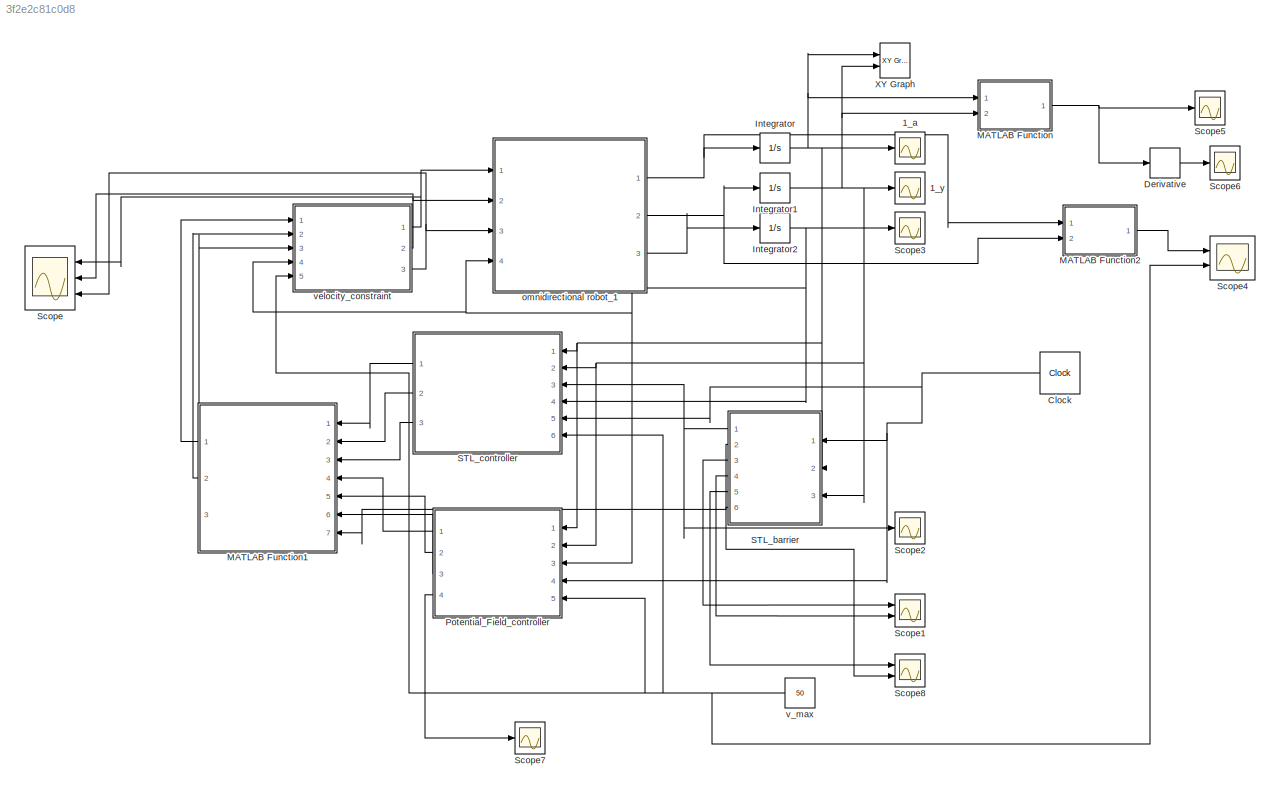
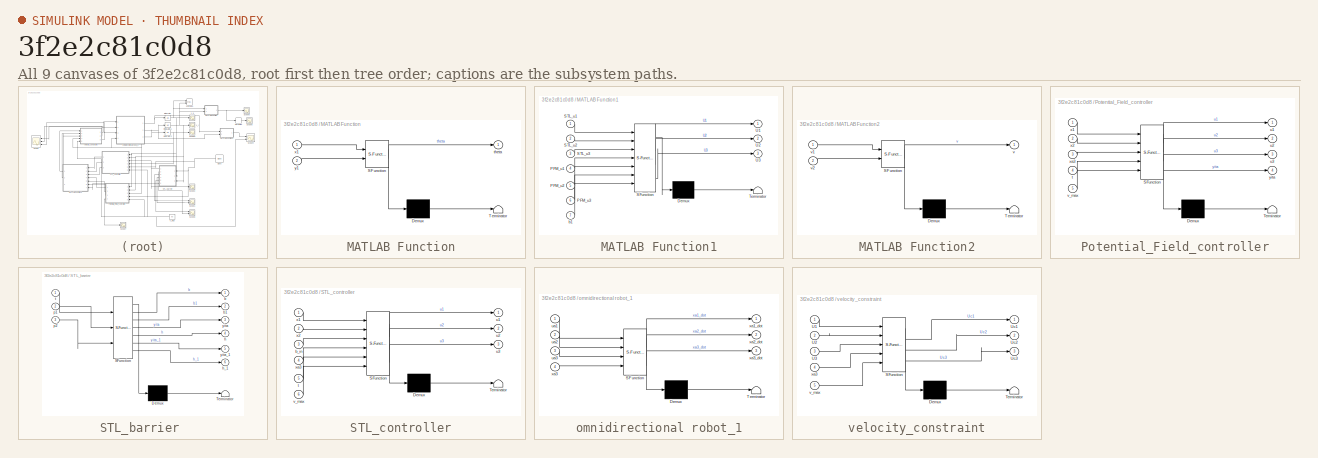
[diagram: thumbnail index - all 9 canvases of the model, root first then tree order]
MODEL slx_3f2e2c81c0d8
KIND model
CONFIG AbsTol = auto
CONFIG EnableMultiTasking = off
CONFIG FixedStep = 1e-2
CONFIG MaxStep = auto
CONFIG MinStep = auto
CONFIG RelTol = 1e-3
CONFIG SampleTimeConstraint = Unconstrained
CONFIG SolverName = FixedStepAuto
CONFIG StartTime = 0.0
CONFIG StopTime = 60.0
BLOCK [Scope] 1_a
  Floating = off
  NumInputPorts = 1
  Ports = [1]
  ScopeSpecificationString = Simulink.scopes.TimeScopeBlockCfg('CurrentConfiguration', extmgr.ConfigurationSet(extmgr.Configuration('Core','General UI',true),extmgr.Configuration('Core','Source UI',true),extmgr.Configuration('Sources','WiredSimulink',true,'DataLogging',true,'DataLoggingVariableName','x1','DataLoggingSaveFormat','StructureWithTime'),extmgr.Configuration('Visuals','Time Domain',true,'SerializedDisplays',{struct...<+1463ch>
BLOCK [Scope] 1_y
  Floating = off
  NumInputPorts = 1
  Ports = [1]
  ScopeSpecificationString = Simulink.scopes.TimeScopeBlockCfg('CurrentConfiguration', extmgr.ConfigurationSet(extmgr.Configuration('Core','General UI',true),extmgr.Configuration('Core','Source UI',true),extmgr.Configuration('Sources','WiredSimulink',true,'DataLoggingVariableName','x2','DataLogging',true,'DataLoggingSaveFormat','StructureWithTime'),extmgr.Configuration('Visuals','Time Domain',true,'SerializedDisplays',{struct...<+1468ch>
BLOCK [Clock] Clock
  DisplayTime = on
BLOCK [Derivative] Derivative
BLOCK [Integrator] Integrator
  Ports = [1, 1]
BLOCK [Integrator] Integrator1
  Ports = [1, 1]
BLOCK [Integrator] Integrator2
  Ports = [1, 1]
BLOCK [SubSystem] MATLAB Function
  ErrorFcn = Stateflow.Translate.translate
  PermitHierarchicalResolution = ExplicitOnly
  Ports = [2, 1]
  RequestExecContextInheritance = off
  SFBlockType = MATLAB Function
  TreatAsAtomicUnit = on
BLOCK [Demux] MATLAB Function/ Demux 
  Outputs = 1
  Ports = [1, 1]
BLOCK [S-Function] MATLAB Function/ SFunction 
  EnableBusSupport = on
  FunctionName = sf_sfun
  PortCounts = [2 2]
  Ports = [2, 2]
  SFcnIsStateOwnerBlock = off
  SFunctionDeploymentMode = off
  Tag = Stateflow S-Function 4
BLOCK [Terminator] MATLAB Function/ Terminator 
BLOCK [Outport] MATLAB Function/theta
  VectorParamsAs1DForOutWhenUnconnected = off
BLOCK [Inport] MATLAB Function/x1
BLOCK [Inport] MATLAB Function/y1
  Port = 2
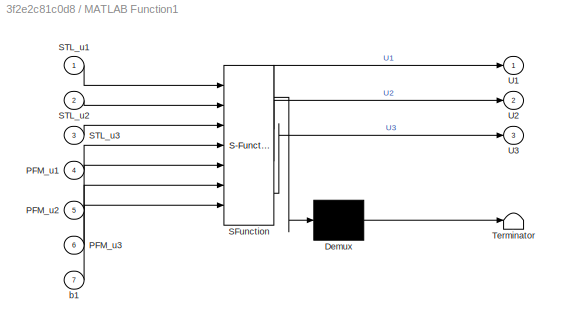
BLOCK [SubSystem] MATLAB Function1
  ErrorFcn = Stateflow.Translate.translate
  PermitHierarchicalResolution = ExplicitOnly
  Ports = [7, 3]
  RequestExecContextInheritance = off
  SFBlockType = MATLAB Function
  TreatAsAtomicUnit = on
BLOCK [Demux] MATLAB Function1/ Demux 
  Outputs = 1
  Ports = [1, 1]
BLOCK [S-Function] MATLAB Function1/ SFunction 
  EnableBusSupport = on
  FunctionName = sf_sfun
  PortCounts = [7 4]
  Ports = [7, 4]
  SFcnIsStateOwnerBlock = off
  SFunctionDeploymentMode = off
  Tag = Stateflow S-Function 6
BLOCK [Terminator] MATLAB Function1/ Terminator 
BLOCK [Inport] MATLAB Function1/PFM_u1
  Port = 4
BLOCK [Inport] MATLAB Function1/PFM_u2
  Port = 5
BLOCK [Inport] MATLAB Function1/PFM_u3
  Port = 6
BLOCK [Inport] MATLAB Function1/STL_u1
BLOCK [Inport] MATLAB Function1/STL_u2
  Port = 2
BLOCK [Inport] MATLAB Function1/STL_u3
  Port = 3
BLOCK [Outport] MATLAB Function1/U1
BLOCK [Outport] MATLAB Function1/U2
  Port = 2
BLOCK [Outport] MATLAB Function1/U3
  Port = 3
BLOCK [Inport] MATLAB Function1/b1
  Port = 7
BLOCK [SubSystem] MATLAB Function2
  ErrorFcn = Stateflow.Translate.translate
  PermitHierarchicalResolution = ExplicitOnly
  Ports = [2, 1]
  RequestExecContextInheritance = off
  SFBlockType = MATLAB Function
  TreatAsAtomicUnit = on
BLOCK [Demux] MATLAB Function2/ Demux 
  Outputs = 1
  Ports = [1, 1]
BLOCK [S-Function] MATLAB Function2/ SFunction 
  EnableBusSupport = on
  FunctionName = sf_sfun
  PortCounts = [2 2]
  Ports = [2, 2]
  SFcnIsStateOwnerBlock = off
  SFunctionDeploymentMode = off
  Tag = Stateflow S-Function 20
BLOCK [Terminator] MATLAB Function2/ Terminator 
BLOCK [Outport] MATLAB Function2/v
  VectorParamsAs1DForOutWhenUnconnected = off
BLOCK [Inport] MATLAB Function2/v1
BLOCK [Inport] MATLAB Function2/v2
  Port = 2
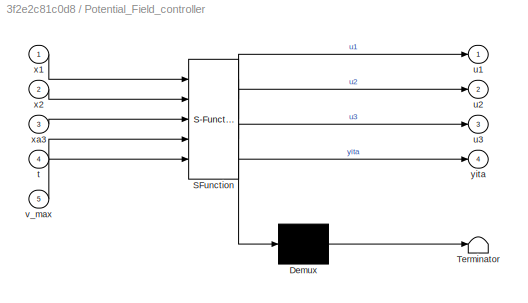
BLOCK [SubSystem] Potential_Field_controller
  ErrorFcn = Stateflow.Translate.translate
  PermitHierarchicalResolution = ExplicitOnly
  Ports = [5, 4]
  RequestExecContextInheritance = off
  SFBlockType = MATLAB Function
  TreatAsAtomicUnit = on
BLOCK [Demux] Potential_Field_controller/ Demux 
  Outputs = 1
  Ports = [1, 1]
BLOCK [S-Function] Potential_Field_controller/ SFunction 
  EnableBusSupport = on
  FunctionName = sf_sfun
  PortCounts = [5 5]
  Ports = [5, 5]
  SFcnIsStateOwnerBlock = off
  SFunctionDeploymentMode = off
  Tag = Stateflow S-Function 5
BLOCK [Terminator] Potential_Field_controller/ Terminator 
BLOCK [Inport] Potential_Field_controller/t
  Port = 4
BLOCK [Outport] Potential_Field_controller/u1
BLOCK [Outport] Potential_Field_controller/u2
  Port = 2
BLOCK [Outport] Potential_Field_controller/u3
  Port = 3
BLOCK [Inport] Potential_Field_controller/v_max
  Port = 5
BLOCK [Inport] Potential_Field_controller/x1
BLOCK [Inport] Potential_Field_controller/x2
  Port = 2
BLOCK [Inport] Potential_Field_controller/xa3
  Port = 3
BLOCK [Outport] Potential_Field_controller/yita
  Port = 4
BLOCK [SubSystem] STL_barrier 
  ErrorFcn = Stateflow.Translate.translate
  PermitHierarchicalResolution = ExplicitOnly
  Ports = [3, 6]
  RequestExecContextInheritance = off
  SFBlockType = MATLAB Function
  TreatAsAtomicUnit = on
BLOCK [Demux] STL_barrier / Demux 
  Outputs = 1
  Ports = [1, 1]
BLOCK [S-Function] STL_barrier / SFunction 
  EnableBusSupport = on
  FunctionName = sf_sfun
  PortCounts = [3 7]
  Ports = [3, 7]
  SFcnIsStateOwnerBlock = off
  SFunctionDeploymentMode = off
  Tag = Stateflow S-Function 1
BLOCK [Terminator] STL_barrier / Terminator 
BLOCK [Outport] STL_barrier /b
BLOCK [Outport] STL_barrier /b1
  Port = 2
BLOCK [Outport] STL_barrier /h
  Port = 4
  VectorParamsAs1DForOutWhenUnconnected = off
BLOCK [Outport] STL_barrier /h_1
  Port = 6
BLOCK [Inport] STL_barrier /p1
  Port = 2
BLOCK [Inport] STL_barrier /p2
  Port = 3
BLOCK [Inport] STL_barrier /t
BLOCK [Outport] STL_barrier /yita
  Port = 3
  VectorParamsAs1DForOutWhenUnconnected = off
BLOCK [Outport] STL_barrier /yita_1
  Port = 5
BLOCK [SubSystem] STL_controller
  ErrorFcn = Stateflow.Translate.translate
  PermitHierarchicalResolution = ExplicitOnly
  Ports = [6, 3]
  RequestExecContextInheritance = off
  SFBlockType = MATLAB Function
  TreatAsAtomicUnit = on
BLOCK [Demux] STL_controller/ Demux 
  Outputs = 1
  Ports = [1, 1]
BLOCK [S-Function] STL_controller/ SFunction 
  EnableBusSupport = on
  FunctionName = sf_sfun
  PortCounts = [6 4]
  Ports = [6, 4]
  SFcnIsStateOwnerBlock = off
  SFunctionDeploymentMode = off
  Tag = Stateflow S-Function 3
BLOCK [Terminator] STL_controller/ Terminator 
BLOCK [Inport] STL_controller/b_in
  Port = 3
BLOCK [Inport] STL_controller/t
  Port = 5
BLOCK [Outport] STL_controller/u1
BLOCK [Outport] STL_controller/u2
  Port = 2
BLOCK [Outport] STL_controller/u3
  Port = 3
BLOCK [Inport] STL_controller/v_max
  Port = 6
BLOCK [Inport] STL_controller/x1
BLOCK [Inport] STL_controller/x2
  Port = 2
BLOCK [Inport] STL_controller/xa3
  Port = 4
BLOCK [Scope] Scope
  Floating = off
  NumInputPorts = 3
  Ports = [3]
  ScopeSpecificationString = Simulink.scopes.TimeScopeBlockCfg('CurrentConfiguration', extmgr.ConfigurationSet(extmgr.Configuration('Core','General UI',true),extmgr.Configuration('Core','Source UI',true),extmgr.Configuration('Sources','WiredSimulink',true,'DataLoggingVariableName','U3','DataLogging',true,'DataLoggingSaveFormat','StructureWithTime'),extmgr.Configuration('Visuals','Time Domain',true,'SerializedDisplays',{struct...<+1625ch>
BLOCK [Scope] Scope1
  Floating = off
  NumInputPorts = 2
  Ports = [2]
  ScopeSpecificationString = Simulink.scopes.TimeScopeBlockCfg('CurrentConfiguration', extmgr.ConfigurationSet(extmgr.Configuration('Core','General UI',true),extmgr.Configuration('Core','Source UI',true),extmgr.Configuration('Sources','WiredSimulink',true,'DataLoggingVariableName','gamma_and_h','DataLogging',true,'DataLoggingSaveFormat','StructureWithTime'),extmgr.Configuration('Visuals','Time Domain',true,'SerializedDisplays...<+1945ch>
BLOCK [Scope] Scope2
  Floating = off
  NumInputPorts = 1
  Ports = [1]
  ScopeSpecificationString = Simulink.scopes.TimeScopeBlockCfg('CurrentConfiguration', extmgr.ConfigurationSet(extmgr.Configuration('Core','General UI',true),extmgr.Configuration('Core','Source UI',true),extmgr.Configuration('Sources','WiredSimulink',true,'DataLoggingVariableName','ScopeData5'),extmgr.Configuration('Visuals','Time Domain',true,'SerializedDisplays',{struct('MinYLimReal','-86.93912','MaxYLimReal','9.6599','YLab...<+1448ch>
BLOCK [Scope] Scope3
  Floating = off
  NumInputPorts = 1
  Ports = [1]
  ScopeSpecificationString = Simulink.scopes.TimeScopeBlockCfg('CurrentConfiguration', extmgr.ConfigurationSet(extmgr.Configuration('Core','General UI',true),extmgr.Configuration('Core','Source UI',true),extmgr.Configuration('Sources','WiredSimulink',true,'DataLoggingVariableName','ScopeData6'),extmgr.Configuration('Visuals','Time Domain',true,'SerializedDisplays',{struct('MinYLimReal','-2.78389','MaxYLimReal','25.05505','YLa...<+1441ch>
BLOCK [Scope] Scope4
  Floating = off
  NumInputPorts = 2
  Ports = [2]
  ScopeSpecificationString = Simulink.scopes.TimeScopeBlockCfg('CurrentConfiguration', extmgr.ConfigurationSet(extmgr.Configuration('Core','General UI',true),extmgr.Configuration('Core','Source UI',true),extmgr.Configuration('Sources','WiredSimulink',true,'DataLoggingVariableName','ScopeData7'),extmgr.Configuration('Visuals','Time Domain',true,'SerializedDisplays',{struct('MinYLimReal','-6.02015','MaxYLimReal','56.22446','YLa...<+1458ch>
BLOCK [Scope] Scope5
  Floating = off
  NumInputPorts = 1
  Ports = [1]
  ScopeSpecificationString = Simulink.scopes.TimeScopeBlockCfg('CurrentConfiguration', extmgr.ConfigurationSet(extmgr.Configuration('Core','General UI',true),extmgr.Configuration('Core','Source UI',true),extmgr.Configuration('Sources','WiredSimulink',true,'DataLoggingVariableName','ScopeData8'),extmgr.Configuration('Visuals','Time Domain',true,'SerializedDisplays',{struct('MinYLimReal','-1.76715','MaxYLimReal','0.19635','YLab...<+1439ch>
BLOCK [Scope] Scope6
  Floating = off
  NumInputPorts = 1
  Ports = [1]
  ScopeSpecificationString = Simulink.scopes.TimeScopeBlockCfg('CurrentConfiguration', extmgr.ConfigurationSet(extmgr.Configuration('Core','General UI',true),extmgr.Configuration('Core','Source UI',true),extmgr.Configuration('Sources','WiredSimulink',true,'DataLoggingVariableName','ScopeData9'),extmgr.Configuration('Visuals','Time Domain',true,'SerializedDisplays',{struct('MinYLimReal','-0.5189','MaxYLimReal','3.73042','YLabe...<+1440ch>
BLOCK [Scope] Scope7
  Floating = off
  NumInputPorts = 1
  Ports = [1]
  ScopeSpecificationString = Simulink.scopes.TimeScopeBlockCfg('CurrentConfiguration', extmgr.ConfigurationSet(extmgr.Configuration('Core','General UI',true),extmgr.Configuration('Core','Source UI',true),extmgr.Configuration('Sources','WiredSimulink',true,'DataLoggingVariableName','ScopeData10'),extmgr.Configuration('Visuals','Time Domain',true,'SerializedDisplays',{struct('MinYLimReal','-13119.52201','MaxYLimReal','118075.69...<+1454ch>
BLOCK [Scope] Scope8
  Floating = off
  NumInputPorts = 2
  Ports = [2]
  ScopeSpecificationString = Simulink.scopes.TimeScopeBlockCfg('CurrentConfiguration', extmgr.ConfigurationSet(extmgr.Configuration('Core','General UI',true),extmgr.Configuration('Core','Source UI',true),extmgr.Configuration('Sources','WiredSimulink',true,'DataLoggingVariableName','gamma_h_1','DataLogging',true,'DataLoggingSaveFormat','StructureWithTime'),extmgr.Configuration('Visuals','Time Domain',true,'SerializedDisplays',...<+1950ch>
BLOCK [Reference] XY Graph  REF=simulink/Sinks/XY Graph
  Ports = [2]
  SourceBlock = simulink/Sinks/XY Graph
  SourceProductBaseCode = SL
  SourceType = XY scope.
BLOCK [SubSystem] omnidirectional robot_1
  ErrorFcn = Stateflow.Translate.translate
  PermitHierarchicalResolution = ExplicitOnly
  Ports = [4, 3]
  RequestExecContextInheritance = off
  SFBlockType = MATLAB Function
  TreatAsAtomicUnit = on
BLOCK [Demux] omnidirectional robot_1/ Demux 
  Outputs = 1
  Ports = [1, 1]
BLOCK [S-Function] omnidirectional robot_1/ SFunction 
  EnableBusSupport = on
  FunctionName = sf_sfun
  PortCounts = [4 4]
  Ports = [4, 4]
  SFcnIsStateOwnerBlock = off
  SFunctionDeploymentMode = off
  Tag = Stateflow S-Function 2
BLOCK [Terminator] omnidirectional robot_1/ Terminator 
BLOCK [Inport] omnidirectional robot_1/ua1
BLOCK [Inport] omnidirectional robot_1/ua2
  Port = 2
BLOCK [Inport] omnidirectional robot_1/ua3
  Port = 3
BLOCK [Outport] omnidirectional robot_1/xa1_dot
BLOCK [Outport] omnidirectional robot_1/xa2_dot
  Port = 2
BLOCK [Inport] omnidirectional robot_1/xa3
  Port = 4
BLOCK [Outport] omnidirectional robot_1/xa3_dot
  Port = 3
BLOCK [Constant] v_max
  Value = 50
BLOCK [SubSystem] velocity_constraint
  ErrorFcn = Stateflow.Translate.translate
  PermitHierarchicalResolution = ExplicitOnly
  Ports = [5, 3]
  RequestExecContextInheritance = off
  SFBlockType = MATLAB Function
  TreatAsAtomicUnit = on
BLOCK [Demux] velocity_constraint/ Demux 
  Outputs = 1
  Ports = [1, 1]
BLOCK [S-Function] velocity_constraint/ SFunction 
  EnableBusSupport = on
  FunctionName = sf_sfun
  PortCounts = [5 4]
  Ports = [5, 4]
  SFcnIsStateOwnerBlock = off
  SFunctionDeploymentMode = off
  Tag = Stateflow S-Function 21
BLOCK [Terminator] velocity_constraint/ Terminator 
BLOCK [Inport] velocity_constraint/U1
BLOCK [Inport] velocity_constraint/U2
  Port = 2
BLOCK [Inport] velocity_constraint/U3
  Port = 3
BLOCK [Outport] velocity_constraint/Uc1
BLOCK [Outport] velocity_constraint/Uc2
  Port = 2
BLOCK [Outport] velocity_constraint/Uc3
  Port = 3
BLOCK [Inport] velocity_constraint/v_max
  Port = 5
BLOCK [Inport] velocity_constraint/xa3
  Port = 4
NET Clock:1 -> Potential_Field_controller:4, STL_barrier :1, STL_controller:5
LINE Derivative:1 -> Scope6:1
NET Integrator1:1 -> 1_y:1, MATLAB Function:2, Potential_Field_controller:2, STL_barrier :3, STL_controller:2, XY Graph:2
NET Integrator2:1 -> Potential_Field_controller:3, STL_controller:4, Scope3:1, omnidirectional robot_1:4, velocity_constraint:4
NET Integrator:1 -> 1_a:1, MATLAB Function:1, Potential_Field_controller:1, STL_barrier :2, STL_controller:1, XY Graph:1
LINE MATLAB Function1:1 -> velocity_constraint:1
LINE MATLAB Function1:2 -> velocity_constraint:2
LINE MATLAB Function1:3 -> velocity_constraint:3
LINE MATLAB Function2:1 -> Scope4:1
NET MATLAB Function:1 -> Derivative:1, Scope5:1
LINE Potential_Field_controller:1 -> MATLAB Function1:4
LINE Potential_Field_controller:2 -> MATLAB Function1:5
LINE Potential_Field_controller:3 -> MATLAB Function1:6
LINE Potential_Field_controller:4 -> Scope7:1
NET STL_barrier :1 -> STL_controller:3, Scope2:1
LINE STL_barrier :2 -> MATLAB Function1:7
LINE STL_barrier :3 -> Scope1:1
LINE STL_barrier :4 -> Scope1:2
LINE STL_barrier :5 -> Scope8:1
LINE STL_barrier :6 -> Scope8:2
LINE STL_controller:1 -> MATLAB Function1:1
LINE STL_controller:2 -> MATLAB Function1:2
LINE STL_controller:3 -> MATLAB Function1:3
NET omnidirectional robot_1:1 -> Integrator:1, MATLAB Function2:1
NET omnidirectional robot_1:2 -> Integrator1:1, MATLAB Function2:2
LINE omnidirectional robot_1:3 -> Integrator2:1
NET v_max:1 -> Potential_Field_controller:5, STL_controller:6, Scope4:2, velocity_constraint:5
NET velocity_constraint:1 -> Scope:1, omnidirectional robot_1:1
NET velocity_constraint:2 -> Scope:2, omnidirectional robot_1:2
NET velocity_constraint:3 -> Scope:3, omnidirectional robot_1:3
note: NET lines group one-source signal fan-out (src -> all destinations, sorted); 1:1 wires keep LINE
CHART velocity_constraint states=1 transitions=1
  STATE_LABEL 'eML_blk_kernel()'
  STATE_LABEL "SCRIPT:\nfunction [Uc1,Uc2,Uc3] = fcn(U1,U2,U3,xa3,v_max)\n\nLi=0.2;\nBi=[0,cos(pi/6),-cos(pi/6);\n    -1,sin(pi/6),sin(pi/6);\n    Li,Li,Li;];\n\nR1=[cos(xa3),-sin(xa3),0;\n    sin(xa3),cos(xa3),0;\n    0,0,1;];\nR=0.02;\ngx=R1*inv(Bi')*R;\n\nU=[U1;U2;U3];\nV=[0;0;0];\nV=gx*U;\nif V(1,1)^2+V(2,1)^2<=v_max^2\n     U(1,1)= U(1,1);\n     U(2,1)= U(2,1);\nelse \n    U(1,1)=sqrt(v_max^2/(V(1,1)^2+V(2,1)^2))*U(1,1);\n    U(...<+140ch>"
CHART STL_barrier  states=1 transitions=1
  STATE_LABEL 'eML_blk_kernel()'
  STATE_LABEL 'SCRIPT:\nfunction [b,b1,yita,h,yita_1,h_1] = fcn(t,p1,p2)\nd11 = 0; d22 = 0;\nif t<20\n    d1=90;\n    d2=90;\nelseif t>=20 && t<40\n    d1=0;\n    d2=100;\n    d11 = 0; d22 = 90;\nelse\n    d1=100;\n    d2=0;  \nend\n\nobs1=50;\nobs2=50;\nyita_1 = 0; h_1 = 0;\nif t<20\nb=125*exp(-0.2295*t)+5-sqrt( (p1-d1)^2 + (p2-d2)^2 );\nyita=-125*exp(-0.2295*t)+5;\nh=10-sqrt( (p1-d1)^2 + (p2-d2)^2 );\nelseif t>=20 && t<40\n    b_1=9...<+1106ch>'
CHART omnidirectional robot_1 states=1 transitions=1
  STATE_LABEL 'eML_blk_kernel()'
  STATE_LABEL "SCRIPT:\nfunction [xa1_dot,xa2_dot,xa3_dot]= fcn(ua1,ua2,ua3,xa3)\n\nLi=0.2;\nBi=[0,cos(pi/6),-cos(pi/6);\n    -1,sin(pi/6),sin(pi/6);\n    Li,Li,Li;];\n\nR1=[cos(xa3),-sin(xa3),0;\n    sin(xa3),cos(xa3),0;\n    0,0,1;];\nR=0.02;\nA=R1*inv(Bi')*R*[ua1;ua2;ua3];\nxa1_dot=A(1,1);\nxa2_dot=A(2,1);\nxa3_dot=A(3,1);\n"
CHART STL_controller states=1 transitions=1
  STATE_LABEL 'eML_blk_kernel()'
  STATE_LABEL "SCRIPT:\nfunction [u1,u2,u3]= fcn(x1, x2, b_in, xa3,t, v_max)\ncoder.extrinsic('quadoptimizer');\n%coder.extrinsic('save');\nd11 = 0; d22 = 0; b_1 = 0; b_2 = 0;partial_b_t = 0\nif t<20\n    d1=90; d2=90;\nelseif t>=20 && t<40\n   d1=0; d2=100; \n   d11=0; d22 = 90;\n    b_1=90*exp(-0.208*(t-20))+8-sqrt( (x1-d1)^2 + (x2-d2)^2 );\n    b_2=90*exp(-0.208*(t-20))+8-sqrt( (x1-d11)^2 + (x2-d22)^2 );\nelse\n   d1=100;...<+1548ch>"
CHART MATLAB Function states=1 transitions=1
  STATE_LABEL 'eML_blk_kernel()'
  STATE_LABEL 'SCRIPT:\nfunction theta = fcn(x1, y1)\ntheta=atan2(y1,x1);\n\n'
CHART Potential_Field_controller states=1 transitions=1
  STATE_LABEL 'eML_blk_kernel()'
  STATE_LABEL "SCRIPT:\nfunction [u1,u2,u3,yita] = fcn(x1, x2, xa3,t,v_max)\ncoder.extrinsic('Calculate_gradient');\ncoder.extrinsic('Calculate_gradient_V1');\ncoder.extrinsic('Calculate_gradient_V1_yita');\ncoder.extrinsic('Calculate_gradient_static_d_1');\ncoder.extrinsic('Calculate_gradient_static_d_2');\ncoder.extrinsic('compute_convex_hull');\ncoder.extrinsic('PVF_optimizer');\ncoder.extrinsic('add_random');\nyita=0;...<+1433ch>"
CHART MATLAB Function1 states=1 transitions=1
  STATE_LABEL 'eML_blk_kernel()'
  STATE_LABEL 'SCRIPT:\nfunction [U1,U2,U3] = fcn(STL_u1,STL_u2,STL_u3,PFM_u1,PFM_u2,PFM_u3,b1)\nU_goal=[STL_u1;STL_u2;STL_u3];\nU_obs=[PFM_u1;PFM_u2;PFM_u3];\nk=0.15;\nlambda=1-exp(-k*max(b1,0));\nU=lambda*U_goal+(1-lambda)*U_obs;\nU1=0;U2=0;U3=0;\nU1=U(1,1);\nU2=U(2,1);\nU3=U(3,1);\n\n'
CHART MATLAB Function2 states=1 transitions=1
  STATE_LABEL 'eML_blk_kernel()'
  STATE_LABEL 'SCRIPT:\nfunction v = fcn(v1, v2)\nv=sqrt(v1^2+v2^2);\n\n'
CHART  states=0 transitions=0
CHART  states=0 transitions=0
CHART  states=0 transitions=0
CHART  states=0 transitions=0
CHART  states=0 transitions=0
CHART  states=0 transitions=0
CHART  states=0 transitions=0
CHART  states=0 transitions=0
